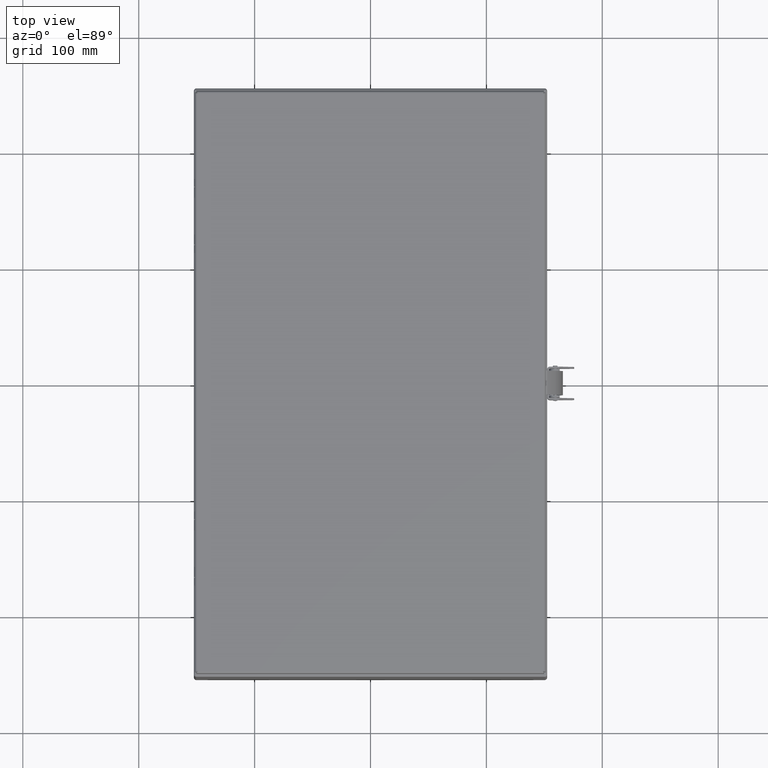
[diagram: clean part render]
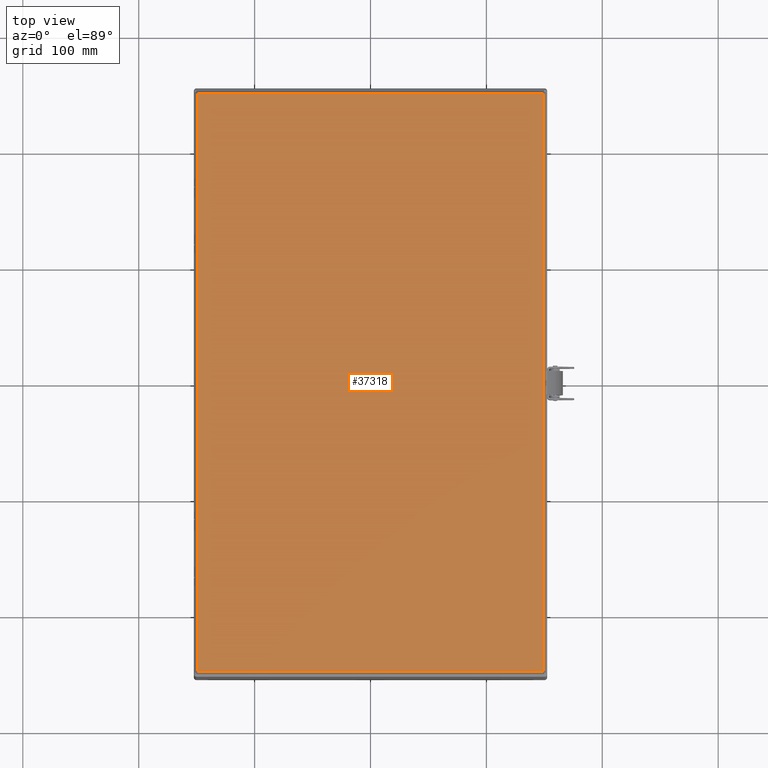
[diagram: same view with one face highlighted and labeled with its STEP entity id]
A machine part, top view. The second image highlights one B-rep face of the part: STEP entity #37318.
In plain terms, the highlighted planar face has unit normal (0, -0, 1).
Its self-contained STEP definition (entity closure, byte-faithful):
#3815=LINE('',#66107,#6017);
#3824=LINE('',#66168,#6026);
#3854=LINE('',#66353,#6056);
#3855=LINE('',#66355,#6057);
#6017=VECTOR('',#44407,0.393700787401575);
#6026=VECTOR('',#44424,0.393700787401575);
#6056=VECTOR('',#44484,0.393700787401575);
#6057=VECTOR('',#44487,0.393700787401575);
#9364=FACE_OUTER_BOUND('',#11688,.T.);
#11688=EDGE_LOOP('',(#28303,#28304,#28305,#28306));
#16131=VERTEX_POINT('',#65973);
#16136=VERTEX_POINT('',#66027);
#16141=VERTEX_POINT('',#66099);
#16148=VERTEX_POINT('',#66167);
#20454=EDGE_CURVE('',#16131,#16141,#3815,.T.);
#20467=EDGE_CURVE('',#16148,#16136,#3824,.T.);
#20505=EDGE_CURVE('',#16136,#16131,#3854,.T.);
#20506=EDGE_CURVE('',#16141,#16148,#3855,.T.);
#28303=ORIENTED_EDGE('',*,*,#20505,.T.);
#28304=ORIENTED_EDGE('',*,*,#20454,.T.);
#28305=ORIENTED_EDGE('',*,*,#20506,.T.);
#28306=ORIENTED_EDGE('',*,*,#20467,.T.);
#36020=PLANE('',#40206);
#37318=ADVANCED_FACE('',(#9364),#36020,.T.);
#40206=AXIS2_PLACEMENT_3D('',#66354,#44485,#44486);
#44407=DIRECTION('',(1.,0.,0.));
#44424=DIRECTION('',(-1.,0.,0.));
#44484=DIRECTION('',(7.12353538454853E-17,-1.,0.));
#44485=DIRECTION('center_axis',(0.,0.,1.));
#44486=DIRECTION('ref_axis',(1.,0.,0.));
#44487=DIRECTION('',(-1.42470707690971E-16,1.,0.));
#65973=CARTESIAN_POINT('',(-5.875,-9.8175,0.053));
#66027=CARTESIAN_POINT('',(-5.875,9.8175,0.053));
#66099=CARTESIAN_POINT('',(5.875,-9.8175,0.053));
#66107=CARTESIAN_POINT('',(-2.9795,-9.8175,0.053));
#66167=CARTESIAN_POINT('',(5.875,9.8175,0.053));
#66168=CARTESIAN_POINT('',(2.9795,9.8175,0.053));
#66353=CARTESIAN_POINT('',(-5.875,4.90875,0.053));
#66354=CARTESIAN_POINT('Origin',(1.12896004101933E-15,0.,0.053));
#66355=CARTESIAN_POINT('',(5.875,-4.90875,0.053));